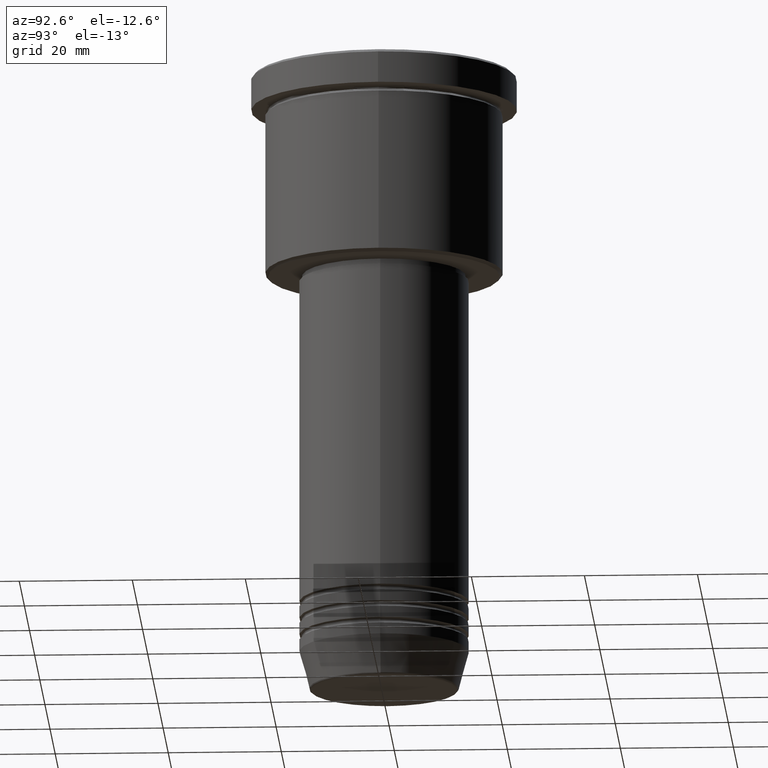
[diagram: clean part render]
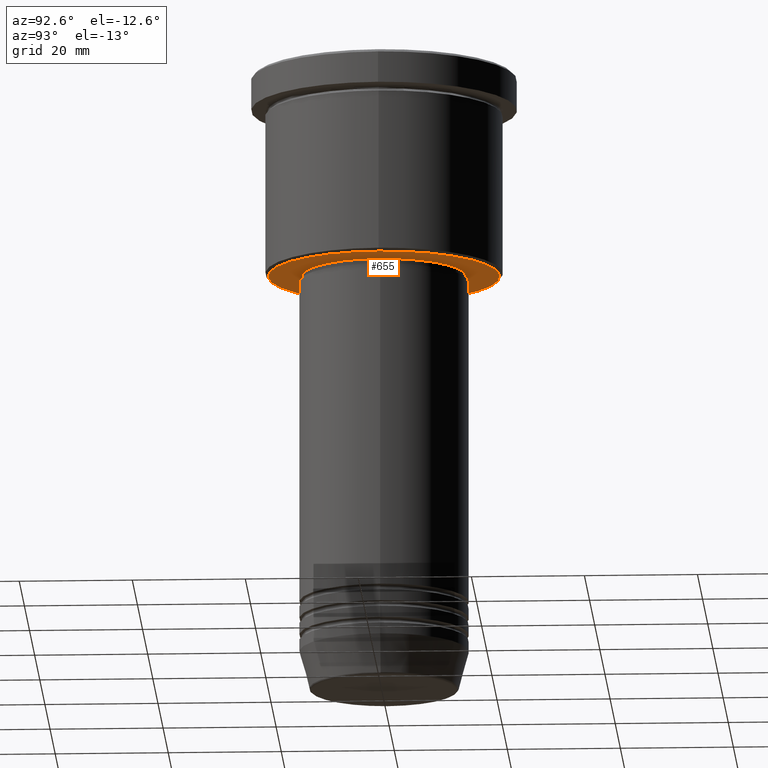
[diagram: same view with one face highlighted and labeled with its STEP entity id]
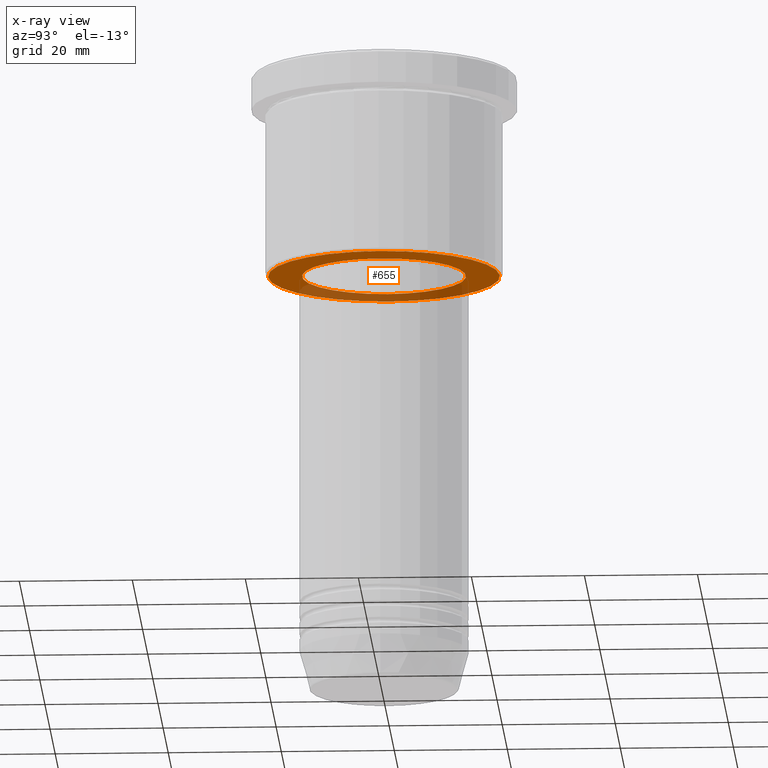
[diagram: x-ray of the same camera — body ghosted, the highlighted face saturated]
A machine part, auxiliary view. The second image highlights one B-rep face of the part: STEP entity #655.
The next image is the same camera in x-ray: the body ghosted, the highlighted face saturated — about 31% of this face is hidden behind the body in this view.
In plain terms, the highlighted planar face has unit normal (0, 0, -1).
Its self-contained STEP definition (entity closure, byte-faithful):
#15 = DIRECTION ( 'NONE',  ( 0.000000000000000000, 0.000000000000000000, -1.000000000000000000 ) ) ;
#31 = CARTESIAN_POINT ( 'NONE',  ( 14.49999999999999822, 0.000000000000000000, -36.00000000000000711 ) ) ;
#83 = DIRECTION ( 'NONE',  ( 0.000000000000000000, 0.000000000000000000, -1.000000000000000000 ) ) ;
#115 = DIRECTION ( 'NONE',  ( -0.000000000000000000, -0.000000000000000000, 1.000000000000000000 ) ) ;
#213 = CARTESIAN_POINT ( 'NONE',  ( 0.000000000000000000, 0.000000000000000000, -36.00000000000000711 ) ) ;
#258 = AXIS2_PLACEMENT_3D ( 'NONE', #1098, #936, #744 ) ;
#305 = VERTEX_POINT ( 'NONE', #661 ) ;
#309 = DIRECTION ( 'NONE',  ( -1.000000000000000000, 0.000000000000000000, 0.000000000000000000 ) ) ;
#332 = CARTESIAN_POINT ( 'NONE',  ( -20.50000000000001776, 2.541142108230759057E-15, -36.00000000000000711 ) ) ;
#346 = ORIENTED_EDGE ( 'NONE', *, *, #788, .T. ) ;
#384 = AXIS2_PLACEMENT_3D ( 'NONE', #989, #83, #805 ) ;
#400 = DIRECTION ( 'NONE',  ( -0.000000000000000000, -0.000000000000000000, 1.000000000000000000 ) ) ;
#405 = CIRCLE ( 'NONE', #384, 20.50000000000001776 ) ;
#429 = AXIS2_PLACEMENT_3D ( 'NONE', #572, #115, #672 ) ;
#466 = VERTEX_POINT ( 'NONE', #332 ) ;
#572 = CARTESIAN_POINT ( 'NONE',  ( 0.000000000000000000, 0.000000000000000000, -36.00000000000000711 ) ) ;
#586 = FACE_BOUND ( 'NONE', #1104, .T. ) ;
#590 = ORIENTED_EDGE ( 'NONE', *, *, #731, .T. ) ;
#603 = EDGE_CURVE ( 'NONE', #305, #466, #405, .T. ) ;
#618 = VERTEX_POINT ( 'NONE', #624 ) ;
#624 = CARTESIAN_POINT ( 'NONE',  ( -14.49999999999999822, 1.775737858763662015E-15, -36.00000000000000711 ) ) ;
#627 = CIRCLE ( 'NONE', #830, 20.50000000000001776 ) ;
#649 = ORIENTED_EDGE ( 'NONE', *, *, #667, .T. ) ;
#655 = ADVANCED_FACE ( 'NONE', ( #1108, #586 ), #769, .T. ) ;
#661 = CARTESIAN_POINT ( 'NONE',  ( 20.50000000000001776, 0.000000000000000000, -36.00000000000000711 ) ) ;
#667 = EDGE_CURVE ( 'NONE', #618, #738, #1133, .T. ) ;
#672 = DIRECTION ( 'NONE',  ( 1.000000000000000000, 0.000000000000000000, 0.000000000000000000 ) ) ;
#703 = EDGE_LOOP ( 'NONE', ( #716, #590 ) ) ;
#716 = ORIENTED_EDGE ( 'NONE', *, *, #603, .T. ) ;
#731 = EDGE_CURVE ( 'NONE', #466, #305, #627, .T. ) ;
#738 = VERTEX_POINT ( 'NONE', #31 ) ;
#743 = AXIS2_PLACEMENT_3D ( 'NONE', #213, #400, #930 ) ;
#744 = DIRECTION ( 'NONE',  ( -1.000000000000000000, 0.000000000000000000, -0.000000000000000000 ) ) ;
#769 = PLANE ( 'NONE',  #258 ) ;
#788 = EDGE_CURVE ( 'NONE', #738, #618, #917, .T. ) ;
#805 = DIRECTION ( 'NONE',  ( -1.000000000000000000, 0.000000000000000000, 0.000000000000000000 ) ) ;
#830 = AXIS2_PLACEMENT_3D ( 'NONE', #1002, #15, #309 ) ;
#917 = CIRCLE ( 'NONE', #429, 14.49999999999999822 ) ;
#930 = DIRECTION ( 'NONE',  ( 1.000000000000000000, 0.000000000000000000, 0.000000000000000000 ) ) ;
#936 = DIRECTION ( 'NONE',  ( 0.000000000000000000, 0.000000000000000000, -1.000000000000000000 ) ) ;
#989 = CARTESIAN_POINT ( 'NONE',  ( 0.000000000000000000, 0.000000000000000000, -36.00000000000000711 ) ) ;
#1002 = CARTESIAN_POINT ( 'NONE',  ( 0.000000000000000000, 0.000000000000000000, -36.00000000000000711 ) ) ;
#1098 = CARTESIAN_POINT ( 'NONE',  ( 0.000000000000000000, 21.00000000000000000, -36.00000000000000711 ) ) ;
#1104 = EDGE_LOOP ( 'NONE', ( #346, #649 ) ) ;
#1108 = FACE_OUTER_BOUND ( 'NONE', #703, .T. ) ;
#1133 = CIRCLE ( 'NONE', #743, 14.49999999999999822 ) ;